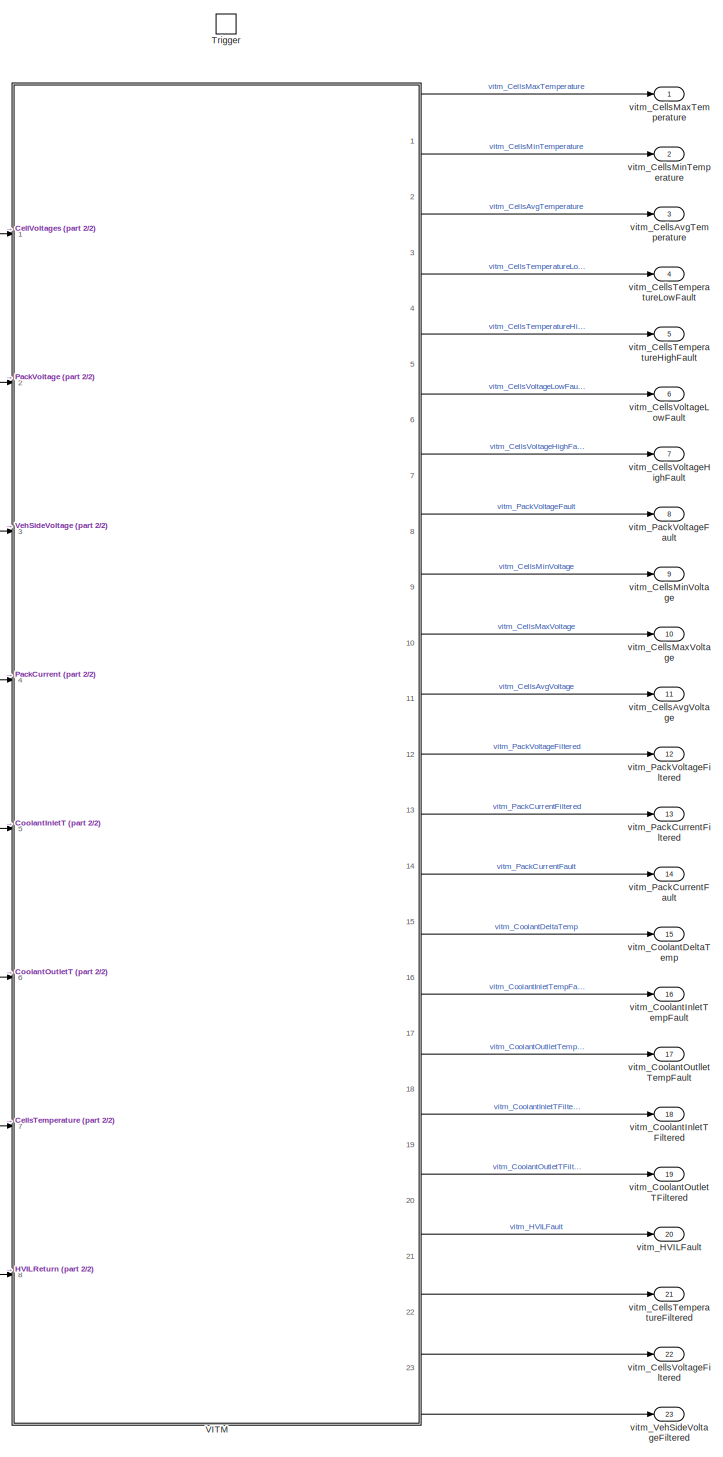
[diagram: root canvas - part 1/2, most of the canvas]
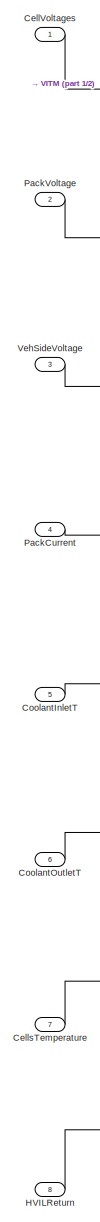
[diagram: root canvas - part 2/2, left side, full height]
MODEL slx_17d0012d4427
KIND model
CONFIG AbsTol = auto
CONFIG FixedStep = vitk_stepSize
CONFIG MaxStep = auto
CONFIG MinStep = auto
CONFIG RelTol = 1e-3
CONFIG SampleTimeConstraint = Unconstrained
CONFIG Solver = FixedStepAuto
CONFIG SolverMode = Auto
CONFIG SolverName = FixedStepAuto
CONFIG StartTime = 0.0
CONFIG StopTime = 10.0
BLOCK [Inport] CellVoltages
  IconDisplay = Port number
  PortDimensions = 40
BLOCK [Inport] CellsTemperature
  IconDisplay = Port number
  Port = 7
  PortDimensions = 40
BLOCK [Inport] CoolantInletT
  IconDisplay = Port number
  Port = 5
BLOCK [Inport] CoolantOutletT
  IconDisplay = Port number
  Port = 6
BLOCK [Inport] HVILReturn
  IconDisplay = Port number
  Port = 8
BLOCK [Inport] PackCurrent
  IconDisplay = Port number
  Port = 4
BLOCK [Inport] PackVoltage
  IconDisplay = Port number
  Port = 2
BLOCK [TriggerPort] Trigger
  PortDimensions = 1
  Ports = []
  StatesWhenEnabling = held
  TriggerType = function-call
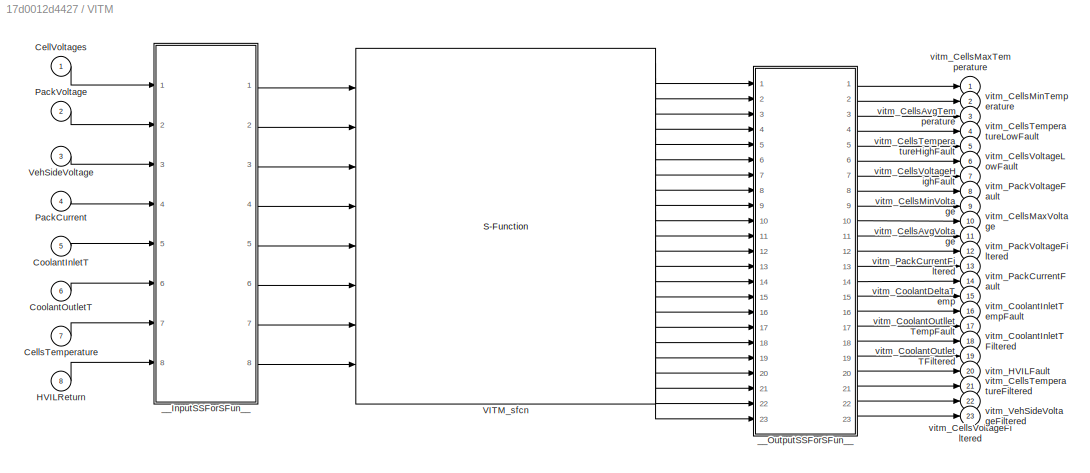
BLOCK [SubSystem] VITM
  Ports = [8, 23]
  RequestExecContextInheritance = off
  Variant = off
BLOCK [Inport] VITM/CellVoltages
  IconDisplay = Port number
  PortDimensions = 40
BLOCK [Inport] VITM/CellsTemperature
  IconDisplay = Port number
  Port = 7
  PortDimensions = 40
BLOCK [Inport] VITM/CoolantInletT
  IconDisplay = Port number
  Port = 5
BLOCK [Inport] VITM/CoolantOutletT
  IconDisplay = Port number
  Port = 6
BLOCK [Inport] VITM/HVILReturn
  IconDisplay = Port number
  Port = 8
BLOCK [Inport] VITM/PackCurrent
  IconDisplay = Port number
  Port = 4
BLOCK [Inport] VITM/PackVoltage
  IconDisplay = Port number
  Port = 2
BLOCK [S-Function] VITM/VITM_sfcn
  CopyFcn = if ~strcmp(get_param(gcb,'Linkstatus'),'none') && ...\n~strcmp(get_param(gcb,'Linkstatus'),'implicit')      \n  set_param(gcb,'LinkStatus','none');                \nend
  EnableBusSupport = off
  FunctionName = VITM_sf
  Parameters = sfcnParam1, sfcnParam2, sfcnParam3, sfcnParam4, sfcnParam5, sfcnParam6, sfcnParam7, sfcnParam8, sfcnParam9, sfcnParam10, sfcnParam11, sfcnParam12, sfcnParam13, sfcnParam14, sfcnParam15, sfcnParam16, sfcnParam17, sfcnParam18, sfcnParam19, sfcnParam20, sfcnParam21, sfcnParam22, sfcnParam23, sfcnParam24, sfcnParam25, sfcnParam26, sfcnParam27, sfcnParam28, sfcnParam29, sfcnParam30, sfcnParam31, sfcnPa...<+31ch>
  Ports = [8, 23]
  SFunctionDeploymentMode = off
BLOCK [Inport] VITM/VehSideVoltage
  IconDisplay = Port number
  Port = 3
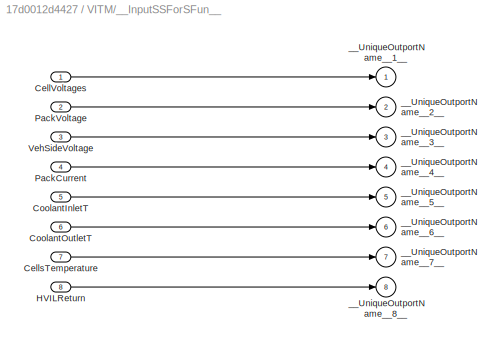
BLOCK [SubSystem] VITM/__InputSSForSFun__
  PermitHierarchicalResolution = ExplicitOnly
  Ports = [8, 8]
  RequestExecContextInheritance = off
  Variant = off
BLOCK [Inport] VITM/__InputSSForSFun__/CellVoltages
  IconDisplay = Port number
  PortDimensions = 40
BLOCK [Inport] VITM/__InputSSForSFun__/CellsTemperature
  IconDisplay = Port number
  Port = 7
  PortDimensions = 40
BLOCK [Inport] VITM/__InputSSForSFun__/CoolantInletT
  IconDisplay = Port number
  Port = 5
BLOCK [Inport] VITM/__InputSSForSFun__/CoolantOutletT
  IconDisplay = Port number
  Port = 6
BLOCK [Inport] VITM/__InputSSForSFun__/HVILReturn
  IconDisplay = Port number
  Port = 8
BLOCK [Inport] VITM/__InputSSForSFun__/PackCurrent
  IconDisplay = Port number
  Port = 4
BLOCK [Inport] VITM/__InputSSForSFun__/PackVoltage
  IconDisplay = Port number
  Port = 2
BLOCK [Inport] VITM/__InputSSForSFun__/VehSideVoltage
  IconDisplay = Port number
  Port = 3
BLOCK [Outport] VITM/__InputSSForSFun__/__UniqueOutportName__1__
  IconDisplay = Port number
BLOCK [Outport] VITM/__InputSSForSFun__/__UniqueOutportName__2__
  IconDisplay = Port number
  Port = 2
BLOCK [Outport] VITM/__InputSSForSFun__/__UniqueOutportName__3__
  IconDisplay = Port number
  Port = 3
BLOCK [Outport] VITM/__InputSSForSFun__/__UniqueOutportName__4__
  IconDisplay = Port number
  Port = 4
BLOCK [Outport] VITM/__InputSSForSFun__/__UniqueOutportName__5__
  IconDisplay = Port number
  Port = 5
BLOCK [Outport] VITM/__InputSSForSFun__/__UniqueOutportName__6__
  IconDisplay = Port number
  Port = 6
BLOCK [Outport] VITM/__InputSSForSFun__/__UniqueOutportName__7__
  IconDisplay = Port number
  Port = 7
BLOCK [Outport] VITM/__InputSSForSFun__/__UniqueOutportName__8__
  IconDisplay = Port number
  Port = 8
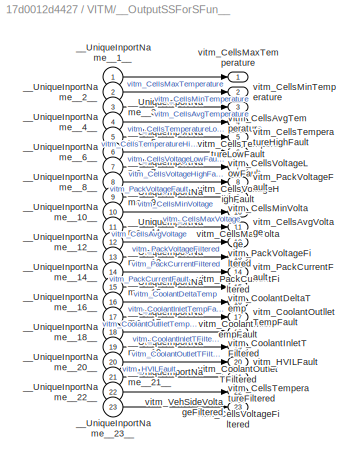
BLOCK [SubSystem] VITM/__OutputSSForSFun__
  PermitHierarchicalResolution = ExplicitOnly
  Ports = [23, 23]
  RequestExecContextInheritance = off
  Variant = off
BLOCK [Inport] VITM/__OutputSSForSFun__/__UniqueInportName__10__
  IconDisplay = Port number
  Port = 10
BLOCK [Inport] VITM/__OutputSSForSFun__/__UniqueInportName__11__
  IconDisplay = Port number
  Port = 11
BLOCK [Inport] VITM/__OutputSSForSFun__/__UniqueInportName__12__
  IconDisplay = Port number
  Port = 12
BLOCK [Inport] VITM/__OutputSSForSFun__/__UniqueInportName__13__
  IconDisplay = Port number
  Port = 13
BLOCK [Inport] VITM/__OutputSSForSFun__/__UniqueInportName__14__
  IconDisplay = Port number
  Port = 14
BLOCK [Inport] VITM/__OutputSSForSFun__/__UniqueInportName__15__
  IconDisplay = Port number
  Port = 15
BLOCK [Inport] VITM/__OutputSSForSFun__/__UniqueInportName__16__
  IconDisplay = Port number
  Port = 16
BLOCK [Inport] VITM/__OutputSSForSFun__/__UniqueInportName__17__
  IconDisplay = Port number
  Port = 17
BLOCK [Inport] VITM/__OutputSSForSFun__/__UniqueInportName__18__
  IconDisplay = Port number
  Port = 18
BLOCK [Inport] VITM/__OutputSSForSFun__/__UniqueInportName__19__
  IconDisplay = Port number
  Port = 19
BLOCK [Inport] VITM/__OutputSSForSFun__/__UniqueInportName__1__
  IconDisplay = Port number
BLOCK [Inport] VITM/__OutputSSForSFun__/__UniqueInportName__20__
  IconDisplay = Port number
  Port = 20
BLOCK [Inport] VITM/__OutputSSForSFun__/__UniqueInportName__21__
  IconDisplay = Port number
  Port = 21
BLOCK [Inport] VITM/__OutputSSForSFun__/__UniqueInportName__22__
  IconDisplay = Port number
  Port = 22
BLOCK [Inport] VITM/__OutputSSForSFun__/__UniqueInportName__23__
  IconDisplay = Port number
  Port = 23
BLOCK [Inport] VITM/__OutputSSForSFun__/__UniqueInportName__2__
  IconDisplay = Port number
  Port = 2
BLOCK [Inport] VITM/__OutputSSForSFun__/__UniqueInportName__3__
  IconDisplay = Port number
  Port = 3
BLOCK [Inport] VITM/__OutputSSForSFun__/__UniqueInportName__4__
  IconDisplay = Port number
  Port = 4
BLOCK [Inport] VITM/__OutputSSForSFun__/__UniqueInportName__5__
  IconDisplay = Port number
  Port = 5
BLOCK [Inport] VITM/__OutputSSForSFun__/__UniqueInportName__6__
  IconDisplay = Port number
  Port = 6
BLOCK [Inport] VITM/__OutputSSForSFun__/__UniqueInportName__7__
  IconDisplay = Port number
  Port = 7
BLOCK [Inport] VITM/__OutputSSForSFun__/__UniqueInportName__8__
  IconDisplay = Port number
  Port = 8
BLOCK [Inport] VITM/__OutputSSForSFun__/__UniqueInportName__9__
  IconDisplay = Port number
  Port = 9
BLOCK [Outport] VITM/__OutputSSForSFun__/vitm_CellsAvgTemperature
  IconDisplay = Port number
  Port = 3
BLOCK [Outport] VITM/__OutputSSForSFun__/vitm_CellsAvgVoltage
  IconDisplay = Port number
  Port = 11
BLOCK [Outport] VITM/__OutputSSForSFun__/vitm_CellsMaxTemperature
  IconDisplay = Port number
BLOCK [Outport] VITM/__OutputSSForSFun__/vitm_CellsMaxVoltage
  IconDisplay = Port number
  Port = 10
BLOCK [Outport] VITM/__OutputSSForSFun__/vitm_CellsMinTemperature
  IconDisplay = Port number
  Port = 2
BLOCK [Outport] VITM/__OutputSSForSFun__/vitm_CellsMinVoltage
  IconDisplay = Port number
  Port = 9
BLOCK [Outport] VITM/__OutputSSForSFun__/vitm_CellsTemperatureFiltered
  IconDisplay = Port number
  Port = 21
BLOCK [Outport] VITM/__OutputSSForSFun__/vitm_CellsTemperatureHighFault
  IconDisplay = Port number
  Port = 5
BLOCK [Outport] VITM/__OutputSSForSFun__/vitm_CellsTemperatureLowFault
  IconDisplay = Port number
  Port = 4
BLOCK [Outport] VITM/__OutputSSForSFun__/vitm_CellsVoltageFiltered
  IconDisplay = Port number
  Port = 22
BLOCK [Outport] VITM/__OutputSSForSFun__/vitm_CellsVoltageHighFault
  IconDisplay = Port number
  Port = 7
BLOCK [Outport] VITM/__OutputSSForSFun__/vitm_CellsVoltageLowFault
  IconDisplay = Port number
  Port = 6
BLOCK [Outport] VITM/__OutputSSForSFun__/vitm_CoolantDeltaTemp
  IconDisplay = Port number
  Port = 15
BLOCK [Outport] VITM/__OutputSSForSFun__/vitm_CoolantInletTFiltered
  IconDisplay = Port number
  Port = 18
BLOCK [Outport] VITM/__OutputSSForSFun__/vitm_CoolantInletTempFault
  IconDisplay = Port number
  Port = 16
BLOCK [Outport] VITM/__OutputSSForSFun__/vitm_CoolantOutletTFiltered
  IconDisplay = Port number
  Port = 19
BLOCK [Outport] VITM/__OutputSSForSFun__/vitm_CoolantOutlletTempFault
  IconDisplay = Port number
  Port = 17
BLOCK [Outport] VITM/__OutputSSForSFun__/vitm_HVILFault
  IconDisplay = Port number
  Port = 20
BLOCK [Outport] VITM/__OutputSSForSFun__/vitm_PackCurrentFault
  IconDisplay = Port number
  Port = 14
BLOCK [Outport] VITM/__OutputSSForSFun__/vitm_PackCurrentFiltered
  IconDisplay = Port number
  Port = 13
BLOCK [Outport] VITM/__OutputSSForSFun__/vitm_PackVoltageFault
  IconDisplay = Port number
  Port = 8
BLOCK [Outport] VITM/__OutputSSForSFun__/vitm_PackVoltageFiltered
  IconDisplay = Port number
  Port = 12
BLOCK [Outport] VITM/__OutputSSForSFun__/vitm_VehSideVoltageFiltered
  IconDisplay = Port number
  Port = 23
BLOCK [Outport] VITM/vitm_CellsAvgTemperature
  IconDisplay = Port number
  Port = 3
BLOCK [Outport] VITM/vitm_CellsAvgVoltage
  IconDisplay = Port number
  Port = 11
BLOCK [Outport] VITM/vitm_CellsMaxTemperature
  IconDisplay = Port number
BLOCK [Outport] VITM/vitm_CellsMaxVoltage
  IconDisplay = Port number
  Port = 10
BLOCK [Outport] VITM/vitm_CellsMinTemperature
  IconDisplay = Port number
  Port = 2
BLOCK [Outport] VITM/vitm_CellsMinVoltage
  IconDisplay = Port number
  Port = 9
BLOCK [Outport] VITM/vitm_CellsTemperatureFiltered
  IconDisplay = Port number
  Port = 21
BLOCK [Outport] VITM/vitm_CellsTemperatureHighFault
  IconDisplay = Port number
  Port = 5
BLOCK [Outport] VITM/vitm_CellsTemperatureLowFault
  IconDisplay = Port number
  Port = 4
BLOCK [Outport] VITM/vitm_CellsVoltageFiltered
  IconDisplay = Port number
  Port = 22
BLOCK [Outport] VITM/vitm_CellsVoltageHighFault
  IconDisplay = Port number
  Port = 7
BLOCK [Outport] VITM/vitm_CellsVoltageLowFault
  IconDisplay = Port number
  Port = 6
BLOCK [Outport] VITM/vitm_CoolantDeltaTemp
  IconDisplay = Port number
  Port = 15
BLOCK [Outport] VITM/vitm_CoolantInletTFiltered
  IconDisplay = Port number
  Port = 18
BLOCK [Outport] VITM/vitm_CoolantInletTempFault
  IconDisplay = Port number
  Port = 16
BLOCK [Outport] VITM/vitm_CoolantOutletTFiltered
  IconDisplay = Port number
  Port = 19
BLOCK [Outport] VITM/vitm_CoolantOutlletTempFault
  IconDisplay = Port number
  Port = 17
BLOCK [Outport] VITM/vitm_HVILFault
  IconDisplay = Port number
  Port = 20
BLOCK [Outport] VITM/vitm_PackCurrentFault
  IconDisplay = Port number
  Port = 14
BLOCK [Outport] VITM/vitm_PackCurrentFiltered
  IconDisplay = Port number
  Port = 13
BLOCK [Outport] VITM/vitm_PackVoltageFault
  IconDisplay = Port number
  Port = 8
BLOCK [Outport] VITM/vitm_PackVoltageFiltered
  IconDisplay = Port number
  Port = 12
BLOCK [Outport] VITM/vitm_VehSideVoltageFiltered
  IconDisplay = Port number
  Port = 23
BLOCK [Inport] VehSideVoltage
  IconDisplay = Port number
  Port = 3
BLOCK [Outport] vitm_CellsAvgTemperature
  IconDisplay = Port number
  Port = 3
BLOCK [Outport] vitm_CellsAvgVoltage
  IconDisplay = Port number
  Port = 11
BLOCK [Outport] vitm_CellsMaxTemperature
  IconDisplay = Port number
BLOCK [Outport] vitm_CellsMaxVoltage
  IconDisplay = Port number
  Port = 10
BLOCK [Outport] vitm_CellsMinTemperature
  IconDisplay = Port number
  Port = 2
BLOCK [Outport] vitm_CellsMinVoltage
  IconDisplay = Port number
  Port = 9
BLOCK [Outport] vitm_CellsTemperatureFiltered
  IconDisplay = Port number
  Port = 21
BLOCK [Outport] vitm_CellsTemperatureHighFault
  IconDisplay = Port number
  Port = 5
BLOCK [Outport] vitm_CellsTemperatureLowFault
  IconDisplay = Port number
  Port = 4
BLOCK [Outport] vitm_CellsVoltageFiltered
  IconDisplay = Port number
  Port = 22
  PortDimensions = 40
BLOCK [Outport] vitm_CellsVoltageHighFault
  IconDisplay = Port number
  Port = 7
BLOCK [Outport] vitm_CellsVoltageLowFault
  IconDisplay = Port number
  Port = 6
BLOCK [Outport] vitm_CoolantDeltaTemp
  IconDisplay = Port number
  Port = 15
BLOCK [Outport] vitm_CoolantInletTFiltered
  IconDisplay = Port number
  Port = 18
BLOCK [Outport] vitm_CoolantInletTempFault
  IconDisplay = Port number
  Port = 16
BLOCK [Outport] vitm_CoolantOutletTFiltered
  IconDisplay = Port number
  Port = 19
BLOCK [Outport] vitm_CoolantOutlletTempFault
  IconDisplay = Port number
  Port = 17
BLOCK [Outport] vitm_HVILFault
  IconDisplay = Port number
  Port = 20
BLOCK [Outport] vitm_PackCurrentFault
  IconDisplay = Port number
  Port = 14
BLOCK [Outport] vitm_PackCurrentFiltered
  IconDisplay = Port number
  Port = 13
BLOCK [Outport] vitm_PackVoltageFault
  IconDisplay = Port number
  Port = 8
BLOCK [Outport] vitm_PackVoltageFiltered
  IconDisplay = Port number
  Port = 12
BLOCK [Outport] vitm_VehSideVoltageFiltered
  IconDisplay = Port number
  Port = 23
LINE CellVoltages:1 -> VITM:1
LINE CellsTemperature:1 -> VITM:7
LINE CoolantInletT:1 -> VITM:5
LINE CoolantOutletT:1 -> VITM:6
LINE HVILReturn:1 -> VITM:8
LINE PackCurrent:1 -> VITM:4
LINE PackVoltage:1 -> VITM:2
LINE VITM/CellVoltages:1 -> VITM/__InputSSForSFun__:1
LINE VITM/CellsTemperature:1 -> VITM/__InputSSForSFun__:7
LINE VITM/CoolantInletT:1 -> VITM/__InputSSForSFun__:5
LINE VITM/CoolantOutletT:1 -> VITM/__InputSSForSFun__:6
LINE VITM/HVILReturn:1 -> VITM/__InputSSForSFun__:8
LINE VITM/PackCurrent:1 -> VITM/__InputSSForSFun__:4
LINE VITM/PackVoltage:1 -> VITM/__InputSSForSFun__:2
LINE VITM/VITM_sfcn:1 -> VITM/__OutputSSForSFun__:1
LINE VITM/VITM_sfcn:10 -> VITM/__OutputSSForSFun__:10
LINE VITM/VITM_sfcn:11 -> VITM/__OutputSSForSFun__:11
LINE VITM/VITM_sfcn:12 -> VITM/__OutputSSForSFun__:12
LINE VITM/VITM_sfcn:13 -> VITM/__OutputSSForSFun__:13
LINE VITM/VITM_sfcn:14 -> VITM/__OutputSSForSFun__:14
LINE VITM/VITM_sfcn:15 -> VITM/__OutputSSForSFun__:15
LINE VITM/VITM_sfcn:16 -> VITM/__OutputSSForSFun__:16
LINE VITM/VITM_sfcn:17 -> VITM/__OutputSSForSFun__:17
LINE VITM/VITM_sfcn:18 -> VITM/__OutputSSForSFun__:18
LINE VITM/VITM_sfcn:19 -> VITM/__OutputSSForSFun__:19
LINE VITM/VITM_sfcn:2 -> VITM/__OutputSSForSFun__:2
LINE VITM/VITM_sfcn:20 -> VITM/__OutputSSForSFun__:20
LINE VITM/VITM_sfcn:21 -> VITM/__OutputSSForSFun__:21
LINE VITM/VITM_sfcn:22 -> VITM/__OutputSSForSFun__:22
LINE VITM/VITM_sfcn:23 -> VITM/__OutputSSForSFun__:23
LINE VITM/VITM_sfcn:3 -> VITM/__OutputSSForSFun__:3
LINE VITM/VITM_sfcn:4 -> VITM/__OutputSSForSFun__:4
LINE VITM/VITM_sfcn:5 -> VITM/__OutputSSForSFun__:5
LINE VITM/VITM_sfcn:6 -> VITM/__OutputSSForSFun__:6
LINE VITM/VITM_sfcn:7 -> VITM/__OutputSSForSFun__:7
LINE VITM/VITM_sfcn:8 -> VITM/__OutputSSForSFun__:8
LINE VITM/VITM_sfcn:9 -> VITM/__OutputSSForSFun__:9
LINE VITM/VehSideVoltage:1 -> VITM/__InputSSForSFun__:3
LINE VITM/__InputSSForSFun__/CellVoltages:1 -> VITM/__InputSSForSFun__/__UniqueOutportName__1__:1
LINE VITM/__InputSSForSFun__/CellsTemperature:1 -> VITM/__InputSSForSFun__/__UniqueOutportName__7__:1
LINE VITM/__InputSSForSFun__/CoolantInletT:1 -> VITM/__InputSSForSFun__/__UniqueOutportName__5__:1
LINE VITM/__InputSSForSFun__/CoolantOutletT:1 -> VITM/__InputSSForSFun__/__UniqueOutportName__6__:1
LINE VITM/__InputSSForSFun__/HVILReturn:1 -> VITM/__InputSSForSFun__/__UniqueOutportName__8__:1
LINE VITM/__InputSSForSFun__/PackCurrent:1 -> VITM/__InputSSForSFun__/__UniqueOutportName__4__:1
LINE VITM/__InputSSForSFun__/PackVoltage:1 -> VITM/__InputSSForSFun__/__UniqueOutportName__2__:1
LINE VITM/__InputSSForSFun__/VehSideVoltage:1 -> VITM/__InputSSForSFun__/__UniqueOutportName__3__:1
LINE VITM/__InputSSForSFun__:1 -> VITM/VITM_sfcn:1
LINE VITM/__InputSSForSFun__:2 -> VITM/VITM_sfcn:2
LINE VITM/__InputSSForSFun__:3 -> VITM/VITM_sfcn:3
LINE VITM/__InputSSForSFun__:4 -> VITM/VITM_sfcn:4
LINE VITM/__InputSSForSFun__:5 -> VITM/VITM_sfcn:5
LINE VITM/__InputSSForSFun__:6 -> VITM/VITM_sfcn:6
LINE VITM/__InputSSForSFun__:7 -> VITM/VITM_sfcn:7
LINE VITM/__InputSSForSFun__:8 -> VITM/VITM_sfcn:8
LINE VITM/__OutputSSForSFun__/__UniqueInportName__10__:1 -> VITM/__OutputSSForSFun__/vitm_CellsMaxVoltage:1
LINE VITM/__OutputSSForSFun__/__UniqueInportName__11__:1 -> VITM/__OutputSSForSFun__/vitm_CellsAvgVoltage:1
LINE VITM/__OutputSSForSFun__/__UniqueInportName__12__:1 -> VITM/__OutputSSForSFun__/vitm_PackVoltageFiltered:1
LINE VITM/__OutputSSForSFun__/__UniqueInportName__13__:1 -> VITM/__OutputSSForSFun__/vitm_PackCurrentFiltered:1
LINE VITM/__OutputSSForSFun__/__UniqueInportName__14__:1 -> VITM/__OutputSSForSFun__/vitm_PackCurrentFault:1
LINE VITM/__OutputSSForSFun__/__UniqueInportName__15__:1 -> VITM/__OutputSSForSFun__/vitm_CoolantDeltaTemp:1
LINE VITM/__OutputSSForSFun__/__UniqueInportName__16__:1 -> VITM/__OutputSSForSFun__/vitm_CoolantInletTempFault:1
LINE VITM/__OutputSSForSFun__/__UniqueInportName__17__:1 -> VITM/__OutputSSForSFun__/vitm_CoolantOutlletTempFault:1
LINE VITM/__OutputSSForSFun__/__UniqueInportName__18__:1 -> VITM/__OutputSSForSFun__/vitm_CoolantInletTFiltered:1
LINE VITM/__OutputSSForSFun__/__UniqueInportName__19__:1 -> VITM/__OutputSSForSFun__/vitm_CoolantOutletTFiltered:1
LINE VITM/__OutputSSForSFun__/__UniqueInportName__1__:1 -> VITM/__OutputSSForSFun__/vitm_CellsMaxTemperature:1
LINE VITM/__OutputSSForSFun__/__UniqueInportName__20__:1 -> VITM/__OutputSSForSFun__/vitm_HVILFault:1
LINE VITM/__OutputSSForSFun__/__UniqueInportName__21__:1 -> VITM/__OutputSSForSFun__/vitm_CellsTemperatureFiltered:1
LINE VITM/__OutputSSForSFun__/__UniqueInportName__22__:1 -> VITM/__OutputSSForSFun__/vitm_CellsVoltageFiltered:1
LINE VITM/__OutputSSForSFun__/__UniqueInportName__23__:1 -> VITM/__OutputSSForSFun__/vitm_VehSideVoltageFiltered:1
LINE VITM/__OutputSSForSFun__/__UniqueInportName__2__:1 -> VITM/__OutputSSForSFun__/vitm_CellsMinTemperature:1
LINE VITM/__OutputSSForSFun__/__UniqueInportName__3__:1 -> VITM/__OutputSSForSFun__/vitm_CellsAvgTemperature:1
LINE VITM/__OutputSSForSFun__/__UniqueInportName__4__:1 -> VITM/__OutputSSForSFun__/vitm_CellsTemperatureLowFault:1
LINE VITM/__OutputSSForSFun__/__UniqueInportName__5__:1 -> VITM/__OutputSSForSFun__/vitm_CellsTemperatureHighFault:1
LINE VITM/__OutputSSForSFun__/__UniqueInportName__6__:1 -> VITM/__OutputSSForSFun__/vitm_CellsVoltageLowFault:1
LINE VITM/__OutputSSForSFun__/__UniqueInportName__7__:1 -> VITM/__OutputSSForSFun__/vitm_CellsVoltageHighFault:1
LINE VITM/__OutputSSForSFun__/__UniqueInportName__8__:1 -> VITM/__OutputSSForSFun__/vitm_PackVoltageFault:1
LINE VITM/__OutputSSForSFun__/__UniqueInportName__9__:1 -> VITM/__OutputSSForSFun__/vitm_CellsMinVoltage:1
LINE VITM/__OutputSSForSFun__:1 -> VITM/vitm_CellsMaxTemperature:1
LINE VITM/__OutputSSForSFun__:10 -> VITM/vitm_CellsMaxVoltage:1
LINE VITM/__OutputSSForSFun__:11 -> VITM/vitm_CellsAvgVoltage:1
LINE VITM/__OutputSSForSFun__:12 -> VITM/vitm_PackVoltageFiltered:1
LINE VITM/__OutputSSForSFun__:13 -> VITM/vitm_PackCurrentFiltered:1
LINE VITM/__OutputSSForSFun__:14 -> VITM/vitm_PackCurrentFault:1
LINE VITM/__OutputSSForSFun__:15 -> VITM/vitm_CoolantDeltaTemp:1
LINE VITM/__OutputSSForSFun__:16 -> VITM/vitm_CoolantInletTempFault:1
LINE VITM/__OutputSSForSFun__:17 -> VITM/vitm_CoolantOutlletTempFault:1
LINE VITM/__OutputSSForSFun__:18 -> VITM/vitm_CoolantInletTFiltered:1
LINE VITM/__OutputSSForSFun__:19 -> VITM/vitm_CoolantOutletTFiltered:1
LINE VITM/__OutputSSForSFun__:2 -> VITM/vitm_CellsMinTemperature:1
LINE VITM/__OutputSSForSFun__:20 -> VITM/vitm_HVILFault:1
LINE VITM/__OutputSSForSFun__:21 -> VITM/vitm_CellsTemperatureFiltered:1
LINE VITM/__OutputSSForSFun__:22 -> VITM/vitm_CellsVoltageFiltered:1
LINE VITM/__OutputSSForSFun__:23 -> VITM/vitm_VehSideVoltageFiltered:1
LINE VITM/__OutputSSForSFun__:3 -> VITM/vitm_CellsAvgTemperature:1
LINE VITM/__OutputSSForSFun__:4 -> VITM/vitm_CellsTemperatureLowFault:1
LINE VITM/__OutputSSForSFun__:5 -> VITM/vitm_CellsTemperatureHighFault:1
LINE VITM/__OutputSSForSFun__:6 -> VITM/vitm_CellsVoltageLowFault:1
LINE VITM/__OutputSSForSFun__:7 -> VITM/vitm_CellsVoltageHighFault:1
LINE VITM/__OutputSSForSFun__:8 -> VITM/vitm_PackVoltageFault:1
LINE VITM/__OutputSSForSFun__:9 -> VITM/vitm_CellsMinVoltage:1
LINE VITM:1 -> vitm_CellsMaxTemperature:1
LINE VITM:10 -> vitm_CellsMaxVoltage:1
LINE VITM:11 -> vitm_CellsAvgVoltage:1
LINE VITM:12 -> vitm_PackVoltageFiltered:1
LINE VITM:13 -> vitm_PackCurrentFiltered:1
LINE VITM:14 -> vitm_PackCurrentFault:1
LINE VITM:15 -> vitm_CoolantDeltaTemp:1
LINE VITM:16 -> vitm_CoolantInletTempFault:1
LINE VITM:17 -> vitm_CoolantOutlletTempFault:1
LINE VITM:18 -> vitm_CoolantInletTFiltered:1
LINE VITM:19 -> vitm_CoolantOutletTFiltered:1
LINE VITM:2 -> vitm_CellsMinTemperature:1
LINE VITM:20 -> vitm_HVILFault:1
LINE VITM:21 -> vitm_CellsTemperatureFiltered:1
LINE VITM:22 -> vitm_CellsVoltageFiltered:1
LINE VITM:23 -> vitm_VehSideVoltageFiltered:1
LINE VITM:3 -> vitm_CellsAvgTemperature:1
LINE VITM:4 -> vitm_CellsTemperatureLowFault:1
LINE VITM:5 -> vitm_CellsTemperatureHighFault:1
LINE VITM:6 -> vitm_CellsVoltageLowFault:1
LINE VITM:7 -> vitm_CellsVoltageHighFault:1
LINE VITM:8 -> vitm_PackVoltageFault:1
LINE VITM:9 -> vitm_CellsMinVoltage:1
LINE VehSideVoltage:1 -> VITM:3
